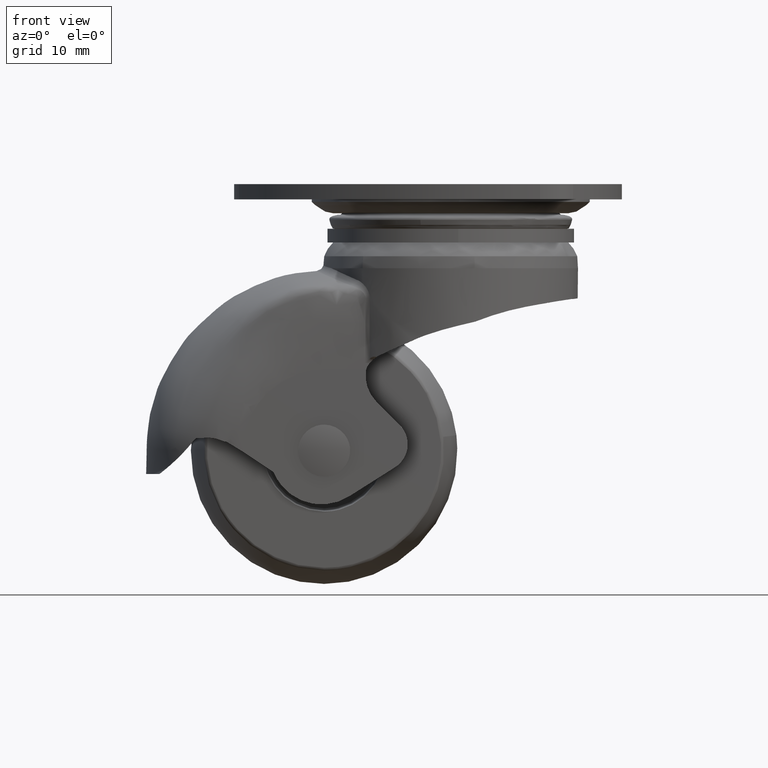
[diagram: clean part render]
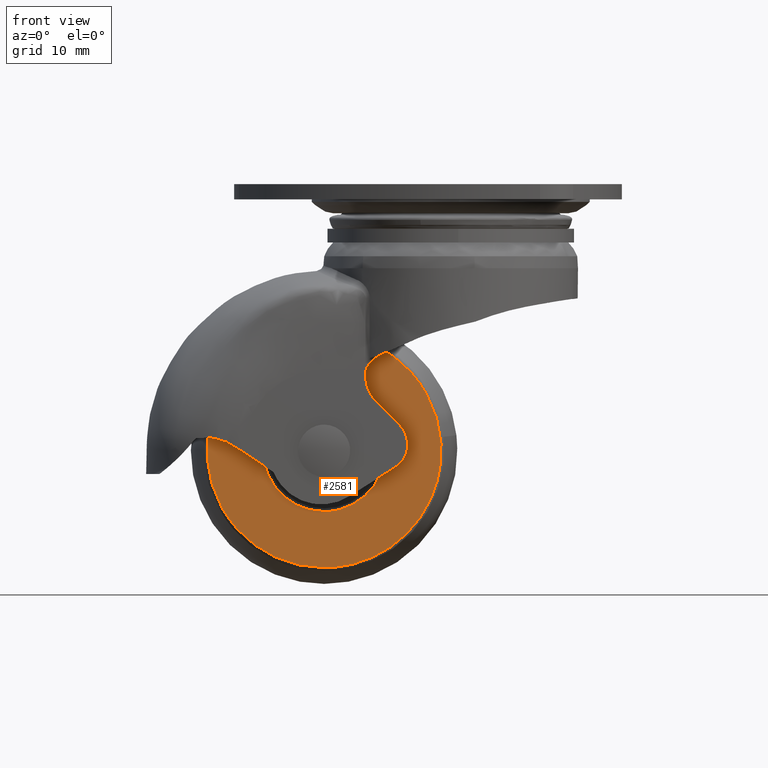
[diagram: same view with one face highlighted and labeled with its STEP entity id]
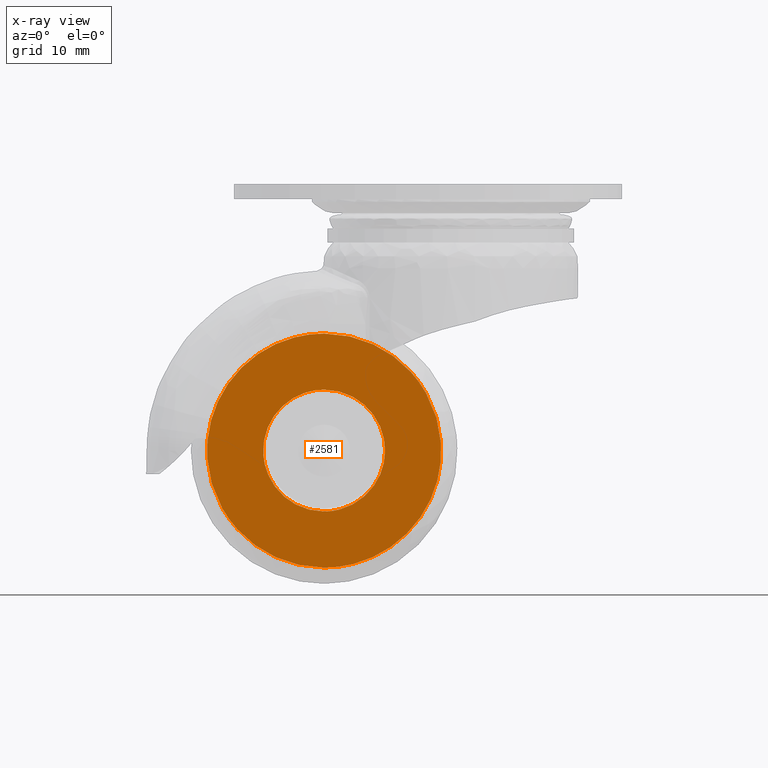
[diagram: x-ray of the same camera — body ghosted, the highlighted face saturated]
A machine part, front view. The second image highlights one B-rep face of the part: STEP entity #2581.
The next image is the same camera in x-ray: the body ghosted, the highlighted face saturated — about 0% of this face is hidden behind the body in this view.
In plain terms, the highlighted face is a freeform B-spline surface patch.
Its self-contained STEP definition (entity closure, byte-faithful):
#887=CARTESIAN_POINT('',(7.505976915325635,-8.000000000000403,-45.218507237381132));
#888=VERTEX_POINT('',#887);
#894=CARTESIAN_POINT('',(0.0,-8.0,-30.858200000000000));
#895=VERTEX_POINT('',#894);
#896=CARTESIAN_POINT('',(0.0,-8.0,-30.858200000000000));
#897=CARTESIAN_POINT('',(9.141800000000000,-8.0,-30.858199999999997));
#898=CARTESIAN_POINT('',(9.141800000000000,-8.0,-40.0));
#899=CARTESIAN_POINT('',(9.141800000000000,-8.0,-42.865640842339218));
#900=CARTESIAN_POINT('',(7.505976915325634,-8.000000000000403,-45.218507237381139));
#908=(BOUNDED_CURVE()B_SPLINE_CURVE(2,(#896,#897,#898,#899,#900),.UNSPECIFIED.,.F.,.U.)B_SPLINE_CURVE_WITH_KNOTS((3,2,3),(0.0,0.250000000000000,0.348090608938795),.UNSPECIFIED.)CURVE()GEOMETRIC_REPRESENTATION_ITEM()RATIONAL_B_SPLINE_CURVE((1.0,0.707106781186548,1.0,0.885079703250179,0.860340221601294))REPRESENTATION_ITEM(''));
#909=EDGE_CURVE('',#895,#888,#908,.T.);
#911=CARTESIAN_POINT('',(-9.113618881516516,-8.000000000005830,-40.717257361395340));
#912=VERTEX_POINT('',#911);
#913=CARTESIAN_POINT('',(-9.113618881516516,-8.000000000005830,-40.717257361395355));
#914=CARTESIAN_POINT('',(-9.141800000000002,-8.0,-40.359182300313513));
#915=CARTESIAN_POINT('',(-9.141800000000000,-8.0,-40.0));
#916=CARTESIAN_POINT('',(-9.141800000000000,-8.0,-30.858199999999997));
#917=CARTESIAN_POINT('',(0.0,-8.0,-30.858200000000000));
#925=(BOUNDED_CURVE()B_SPLINE_CURVE(2,(#913,#914,#915,#916,#917),.UNSPECIFIED.,.F.,.U.)B_SPLINE_CURVE_WITH_KNOTS((3,2,3),(0.736331300630116,0.750000000000000,1.0),.UNSPECIFIED.)CURVE()GEOMETRIC_REPRESENTATION_ITEM()RATIONAL_B_SPLINE_CURVE((0.969723356166282,0.983986122578244,1.0,0.707106781186548,1.0))REPRESENTATION_ITEM(''));
#926=EDGE_CURVE('',#912,#895,#925,.T.);
#1030=CARTESIAN_POINT('',(0.0,-8.0,-49.141800000000003));
#1031=VERTEX_POINT('',#1030);
#1032=CARTESIAN_POINT('',(0.0,-8.0,-49.141800000000003));
#1033=CARTESIAN_POINT('',(-8.450592996509858,-8.0,-49.141799999999989));
#1034=CARTESIAN_POINT('',(-9.113618881516516,-8.000000000005830,-40.717257361395340));
#1042=(BOUNDED_CURVE()B_SPLINE_CURVE(2,(#1032,#1033,#1034),.UNSPECIFIED.,.F.,.U.)B_SPLINE_CURVE_WITH_KNOTS((3,3),(0.500000000000000,0.736331300630115),.UNSPECIFIED.)CURVE()GEOMETRIC_REPRESENTATION_ITEM()RATIONAL_B_SPLINE_CURVE((1.0,0.723120658608304,0.969723356166281))REPRESENTATION_ITEM(''));
#1043=EDGE_CURVE('',#1031,#912,#1042,.T.);
#1045=CARTESIAN_POINT('',(7.505976915325635,-8.000000000000403,-45.218507237381132));
#1046=CARTESIAN_POINT('',(4.778319755296487,-8.0,-49.141799999999989));
#1047=CARTESIAN_POINT('',(0.0,-8.0,-49.141800000000003));
#1055=(BOUNDED_CURVE()B_SPLINE_CURVE(2,(#1045,#1046,#1047),.UNSPECIFIED.,.F.,.U.)B_SPLINE_CURVE_WITH_KNOTS((3,3),(0.348090608938795,0.500000000000000),.UNSPECIFIED.)CURVE()GEOMETRIC_REPRESENTATION_ITEM()RATIONAL_B_SPLINE_CURVE((0.860340221601294,0.822027077936369,1.0))REPRESENTATION_ITEM(''));
#1056=EDGE_CURVE('',#888,#1031,#1055,.T.);
#2077=CARTESIAN_POINT('',(-15.284481802198581,-8.0,-48.654588235028129));
#2078=VERTEX_POINT('',#2077);
#2092=CARTESIAN_POINT('',(0.0,-8.0,-22.435340000000000));
#2093=VERTEX_POINT('',#2092);
#2094=CARTESIAN_POINT('',(-15.284481802198577,-8.0,-48.654588235028129));
#2095=CARTESIAN_POINT('',(-17.564660000000007,-8.0,-44.627667311118742));
#2096=CARTESIAN_POINT('',(-17.564660000000000,-8.0,-40.0));
#2097=CARTESIAN_POINT('',(-17.564660000000007,-8.0,-22.435340000000004));
#2098=CARTESIAN_POINT('',(0.0,-8.0,-22.435340000000000));
#2106=(BOUNDED_CURVE()B_SPLINE_CURVE(2,(#2094,#2095,#2096,#2097,#2098),.UNSPECIFIED.,.F.,.U.)B_SPLINE_CURVE_WITH_KNOTS((3,2,3),(0.666016361513093,0.750000000000000,1.0),.UNSPECIFIED.)CURVE()GEOMETRIC_REPRESENTATION_ITEM()RATIONAL_B_SPLINE_CURVE((0.869321279799159,0.901607047183618,1.0,0.707106781186548,1.0))REPRESENTATION_ITEM(''));
#2107=EDGE_CURVE('',#2078,#2093,#2106,.T.);
#2109=CARTESIAN_POINT('',(15.284481802198581,-8.0,-31.345411764971882));
#2110=VERTEX_POINT('',#2109);
#2111=CARTESIAN_POINT('',(0.0,-8.0,-22.435340000000000));
#2112=CARTESIAN_POINT('',(10.239299142313792,-8.000000000000002,-22.435340000000007));
#2113=CARTESIAN_POINT('',(15.284481802198590,-8.0,-31.345411764971878));
#2121=(BOUNDED_CURVE()B_SPLINE_CURVE(2,(#2111,#2112,#2113),.UNSPECIFIED.,.F.,.U.)B_SPLINE_CURVE_WITH_KNOTS((3,3),(0.0,0.166016361513094),.UNSPECIFIED.)CURVE()GEOMETRIC_REPRESENTATION_ITEM()RATIONAL_B_SPLINE_CURVE((1.0,0.805499734002929,0.869321279799159))REPRESENTATION_ITEM(''));
#2122=EDGE_CURVE('',#2093,#2110,#2121,.T.);
#2224=CARTESIAN_POINT('',(0.0,-8.0,-57.564660000000003));
#2225=VERTEX_POINT('',#2224);
#2226=CARTESIAN_POINT('',(15.284481802198590,-8.0,-31.345411764971878));
#2227=CARTESIAN_POINT('',(17.564660000000003,-8.0,-35.372332688881251));
#2228=CARTESIAN_POINT('',(17.564660000000000,-8.0,-40.0));
#2229=CARTESIAN_POINT('',(17.564660000000007,-8.0,-57.564660000000003));
#2230=CARTESIAN_POINT('',(0.0,-8.0,-57.564660000000003));
#2238=(BOUNDED_CURVE()B_SPLINE_CURVE(2,(#2226,#2227,#2228,#2229,#2230),.UNSPECIFIED.,.F.,.U.)B_SPLINE_CURVE_WITH_KNOTS((3,2,3),(0.166016361513094,0.250000000000000,0.500000000000000),.UNSPECIFIED.)CURVE()GEOMETRIC_REPRESENTATION_ITEM()RATIONAL_B_SPLINE_CURVE((0.869321279799159,0.901607047183619,1.0,0.707106781186548,1.0))REPRESENTATION_ITEM(''));
#2239=EDGE_CURVE('',#2110,#2225,#2238,.T.);
#2241=CARTESIAN_POINT('',(0.0,-8.0,-57.564660000000003));
#2242=CARTESIAN_POINT('',(-10.239299142313737,-8.0,-57.564660000000011));
#2243=CARTESIAN_POINT('',(-15.284481802198579,-8.0,-48.654588235028129));
#2251=(BOUNDED_CURVE()B_SPLINE_CURVE(2,(#2241,#2242,#2243),.UNSPECIFIED.,.F.,.U.)B_SPLINE_CURVE_WITH_KNOTS((3,3),(0.500000000000000,0.666016361513093),.UNSPECIFIED.)CURVE()GEOMETRIC_REPRESENTATION_ITEM()RATIONAL_B_SPLINE_CURVE((1.0,0.805499734002930,0.869321279799158))REPRESENTATION_ITEM(''));
#2252=EDGE_CURVE('',#2225,#2078,#2251,.T.);
#2564=CARTESIAN_POINT('',(-19.311535149749020,-8.0,-59.319368680868109));
#2565=CARTESIAN_POINT('',(-19.311535149749020,-8.0,-20.680632261373681));
#2566=CARTESIAN_POINT('',(19.311536091972229,-8.0,-59.319368680868109));
#2567=CARTESIAN_POINT('',(19.311536091972229,-8.0,-20.680632261373681));
#2568=B_SPLINE_SURFACE_WITH_KNOTS('',1,1,((#2564,#2566),(#2565,#2567)),.UNSPECIFIED.,.F.,.F.,.U.,(2,2),(2,2),(0.0,38.638736419494442),(0.0,38.623071241721249),.UNSPECIFIED.);
#2569=ORIENTED_EDGE('',*,*,#2107,.F.);
#2570=ORIENTED_EDGE('',*,*,#2252,.F.);
#2571=ORIENTED_EDGE('',*,*,#2239,.F.);
#2572=ORIENTED_EDGE('',*,*,#2122,.F.);
#2573=EDGE_LOOP('',(#2569,#2570,#2571,#2572));
#2574=FACE_OUTER_BOUND('',#2573,.T.);
#2575=ORIENTED_EDGE('',*,*,#1043,.T.);
#2576=ORIENTED_EDGE('',*,*,#926,.T.);
#2577=ORIENTED_EDGE('',*,*,#909,.T.);
#2578=ORIENTED_EDGE('',*,*,#1056,.T.);
#2579=EDGE_LOOP('',(#2575,#2576,#2577,#2578));
#2580=FACE_BOUND('',#2579,.T.);
#2581=ADVANCED_FACE('',(#2574,#2580),#2568,.F.);